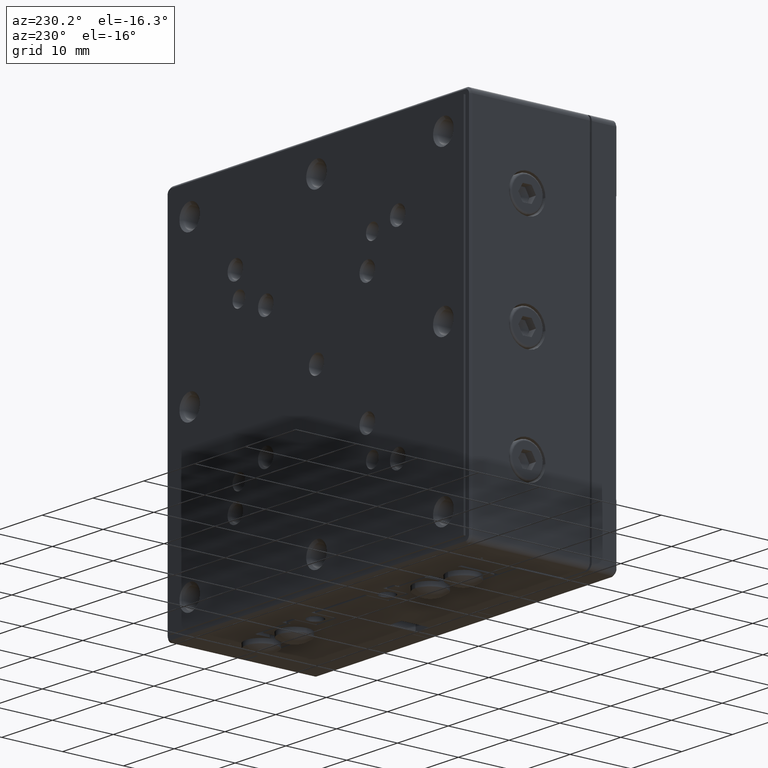
[diagram: clean part render]
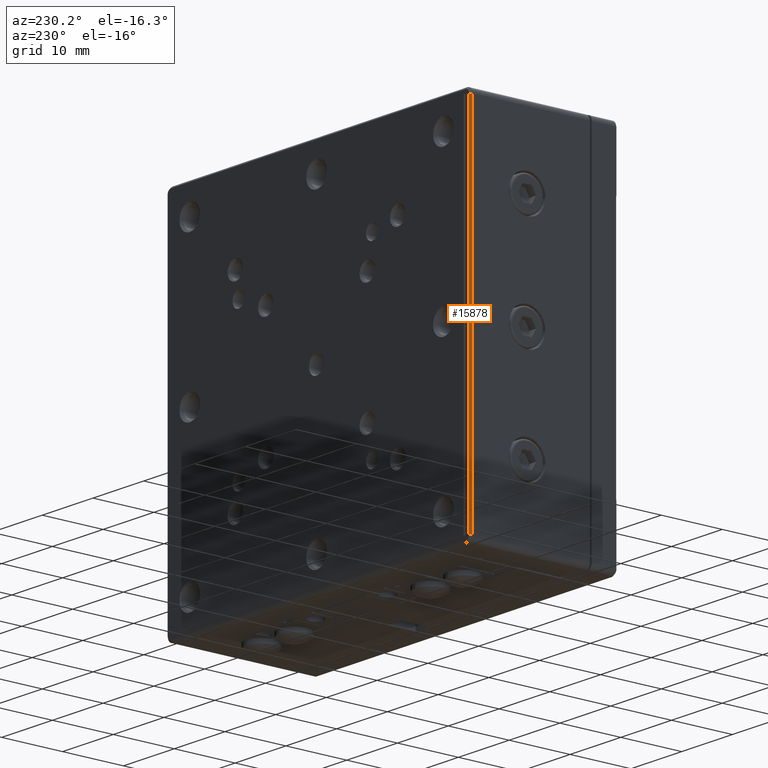
[diagram: same view with one face highlighted and labeled with its STEP entity id]
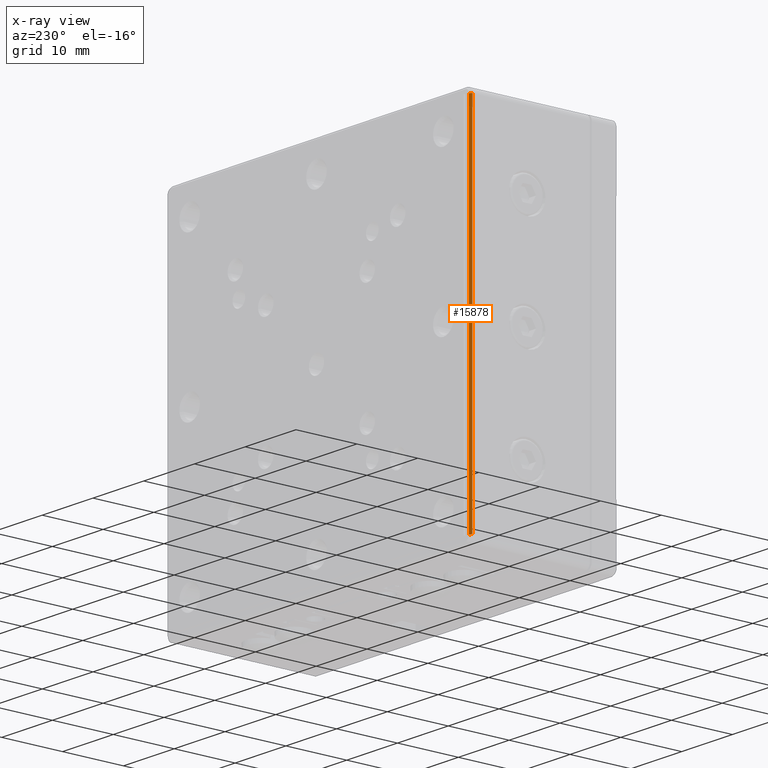
[diagram: x-ray of the same camera — body ghosted, the highlighted face saturated]
A machine part, auxiliary view. The second image highlights one B-rep face of the part: STEP entity #15878.
The next image is the same camera in x-ray: the body ghosted, the highlighted face saturated — about 0% of this face is hidden behind the body in this view.
In plain terms, the highlighted planar face has unit normal (0.7071, -0.7071, -0).
Its self-contained STEP definition (entity closure, byte-faithful):
#547 = CARTESIAN_POINT ( 'NONE',  ( 60.00000000000000000, 11.70000000000000107, 60.00000000000000000 ) ) ;
#1532 = CARTESIAN_POINT ( 'NONE',  ( 59.70000000000000284, 12.00000000000000000, 59.00000000000000000 ) ) ;
#3258 = VECTOR ( 'NONE', #3337, 1000.000000000000000 ) ;
#3337 = DIRECTION ( 'NONE',  ( 0.000000000000000000, 0.000000000000000000, -1.000000000000000000 ) ) ;
#3590 = CARTESIAN_POINT ( 'NONE',  ( 59.70000000000000284, 12.00000000000000000, 60.00000000000000000 ) ) ;
#3628 = LINE ( 'NONE', #7513, #20171 ) ;
#3992 = VERTEX_POINT ( 'NONE', #19069 ) ;
#6511 = ORIENTED_EDGE ( 'NONE', *, *, #24907, .F. ) ;
#7513 = CARTESIAN_POINT ( 'NONE',  ( 60.00000000000000000, 11.70000000000000107, 1.000000000000000000 ) ) ;
#8275 = EDGE_CURVE ( 'NONE', #13324, #23042, #13182, .T. ) ;
#8852 = DIRECTION ( 'NONE',  ( -0.7071067811865455743, -0.7071067811865495711, 0.000000000000000000 ) ) ;
#10847 = FACE_OUTER_BOUND ( 'NONE', #19603, .T. ) ;
#13054 = CARTESIAN_POINT ( 'NONE',  ( 60.00000000000000000, 11.70000000000000107, 59.00000000000000000 ) ) ;
#13182 = LINE ( 'NONE', #13054, #21253 ) ;
#13324 = VERTEX_POINT ( 'NONE', #14121 ) ;
#14121 = CARTESIAN_POINT ( 'NONE',  ( 60.00000000000000000, 11.70000000000000107, 59.00000000000000000 ) ) ;
#15226 = DIRECTION ( 'NONE',  ( -0.7071067811865495711, 0.7071067811865455743, 0.000000000000000000 ) ) ;
#15432 = LINE ( 'NONE', #547, #21572 ) ;
#15878 = ADVANCED_FACE ( 'NONE', ( #10847 ), #20586, .F. ) ;
#16798 = CARTESIAN_POINT ( 'NONE',  ( 59.70000000000000284, 12.00000000000000000, 60.00000000000000000 ) ) ;
#17047 = EDGE_CURVE ( 'NONE', #3992, #17490, #3628, .T. ) ;
#17136 = ORIENTED_EDGE ( 'NONE', *, *, #8275, .F. ) ;
#17302 = ORIENTED_EDGE ( 'NONE', *, *, #21176, .F. ) ;
#17490 = VERTEX_POINT ( 'NONE', #17976 ) ;
#17976 = CARTESIAN_POINT ( 'NONE',  ( 59.70000000000000284, 12.00000000000000000, 1.000000000000000000 ) ) ;
#19069 = CARTESIAN_POINT ( 'NONE',  ( 60.00000000000000000, 11.70000000000000107, 1.000000000000000000 ) ) ;
#19603 = EDGE_LOOP ( 'NONE', ( #23895, #6511, #17136, #17302 ) ) ;
#20171 = VECTOR ( 'NONE', #15226, 1000.000000000000114 ) ;
#20335 = DIRECTION ( 'NONE',  ( -0.7071067811865494601, 0.7071067811865454633, 0.000000000000000000 ) ) ;
#20586 = PLANE ( 'NONE',  #24957 ) ;
#20631 = LINE ( 'NONE', #3590, #3258 ) ;
#20763 = DIRECTION ( 'NONE',  ( -0.7071067811865495711, 0.7071067811865455743, 0.000000000000000000 ) ) ;
#21176 = EDGE_CURVE ( 'NONE', #3992, #13324, #15432, .T. ) ;
#21253 = VECTOR ( 'NONE', #20763, 1000.000000000000114 ) ;
#21572 = VECTOR ( 'NONE', #23154, 1000.000000000000000 ) ;
#23042 = VERTEX_POINT ( 'NONE', #1532 ) ;
#23154 = DIRECTION ( 'NONE',  ( 0.000000000000000000, 0.000000000000000000, 1.000000000000000000 ) ) ;
#23895 = ORIENTED_EDGE ( 'NONE', *, *, #17047, .T. ) ;
#24907 = EDGE_CURVE ( 'NONE', #23042, #17490, #20631, .T. ) ;
#24957 = AXIS2_PLACEMENT_3D ( 'NONE', #16798, #8852, #20335 ) ;